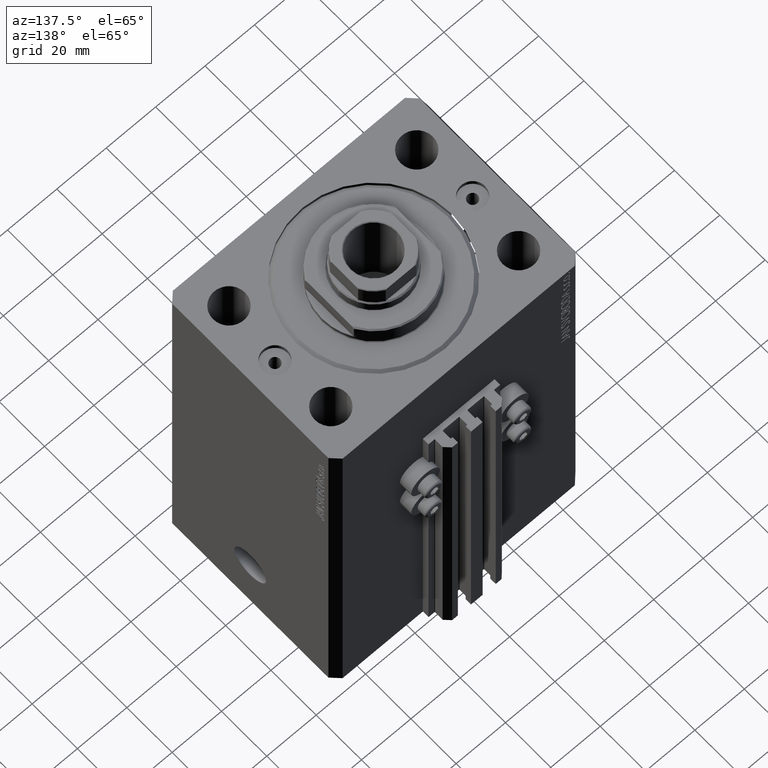
[diagram: clean part render]
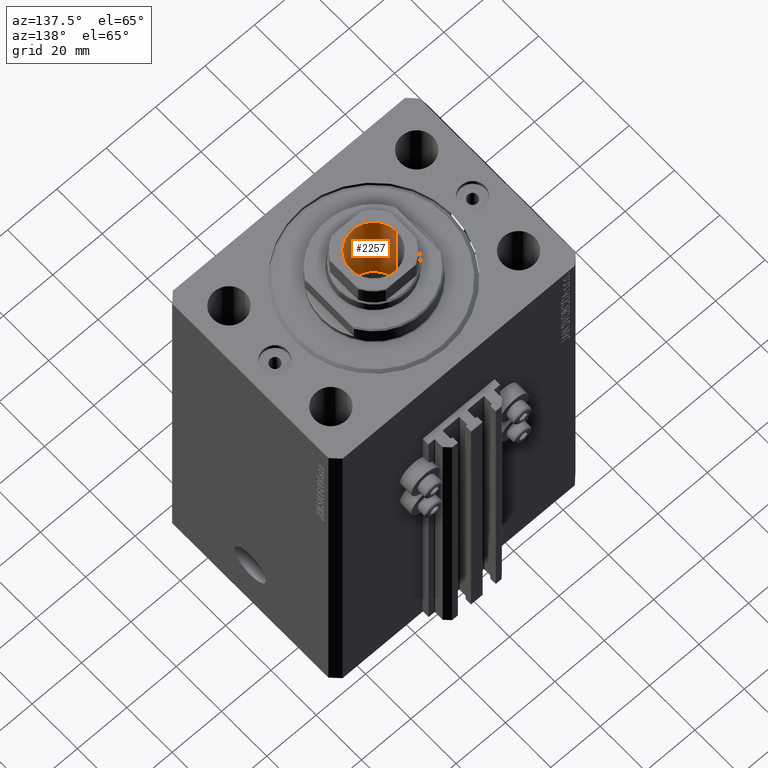
[diagram: same view with one face highlighted and labeled with its STEP entity id]
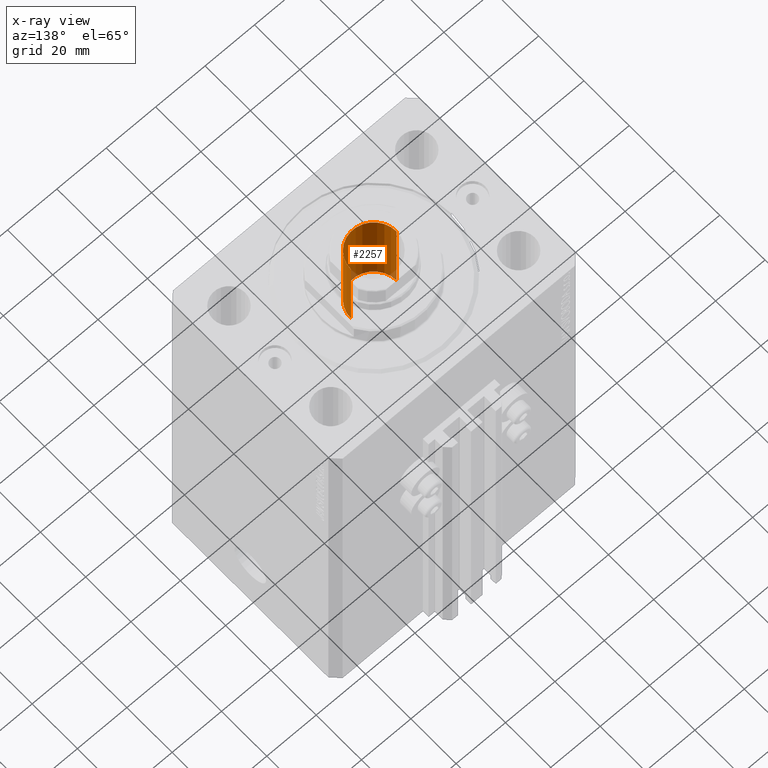
[diagram: x-ray of the same camera — body ghosted, the highlighted face saturated]
A machine part, auxiliary view. The second image highlights one B-rep face of the part: STEP entity #2257.
The next image is the same camera in x-ray: the body ghosted, the highlighted face saturated — about 3% of this face is hidden behind the body in this view.
In plain terms, the highlighted cylindrical surface (edge-blend (fillet) strip) has radius 9.25 mm, axis along (0, 0, 1).
Its self-contained STEP definition (entity closure, byte-faithful):
#1807 = CIRCLE ( 'NONE', #40711, 9.249999999999996447 ) ;
#2257 = ADVANCED_FACE ( 'NONE', ( #10393 ), #10165, .F. ) ;
#5801 = DIRECTION ( 'NONE',  ( 1.000000000000000000, 0.000000000000000000, 0.000000000000000000 ) ) ;
#6414 = CARTESIAN_POINT ( 'NONE',  ( 9.249999999999996447, 0.000000000000000000, 163.0000000000000000 ) ) ;
#10165 = CYLINDRICAL_SURFACE ( 'NONE', #37029, 9.249999999999996447 ) ;
#10393 = FACE_OUTER_BOUND ( 'NONE', #28069, .T. ) ;
#12688 = ORIENTED_EDGE ( 'NONE', *, *, #20683, .T. ) ;
#14044 = DIRECTION ( 'NONE',  ( -0.000000000000000000, -0.000000000000000000, 1.000000000000000000 ) ) ;
#14224 = CARTESIAN_POINT ( 'NONE',  ( -9.249999999999996447, 1.132798289211301304E-15, 162.7000000000000171 ) ) ;
#14698 = DIRECTION ( 'NONE',  ( 1.000000000000000000, 0.000000000000000000, 0.000000000000000000 ) ) ;
#16082 = VERTEX_POINT ( 'NONE', #14224 ) ;
#16848 = EDGE_CURVE ( 'NONE', #38548, #16082, #45352, .T. ) ;
#20167 = VERTEX_POINT ( 'NONE', #47244 ) ;
#20508 = CIRCLE ( 'NONE', #24328, 9.249999999999994671 ) ;
#20683 = EDGE_CURVE ( 'NONE', #16082, #26537, #1807, .T. ) ;
#20833 = DIRECTION ( 'NONE',  ( 0.000000000000000000, 0.000000000000000000, 1.000000000000000000 ) ) ;
#22272 = ORIENTED_EDGE ( 'NONE', *, *, #35832, .F. ) ;
#24328 = AXIS2_PLACEMENT_3D ( 'NONE', #35783, #14044, #28608 ) ;
#26537 = VERTEX_POINT ( 'NONE', #32533 ) ;
#27457 = DIRECTION ( 'NONE',  ( -0.000000000000000000, -0.000000000000000000, 1.000000000000000000 ) ) ;
#28069 = EDGE_LOOP ( 'NONE', ( #40649, #35598, #12688, #22272 ) ) ;
#28608 = DIRECTION ( 'NONE',  ( 1.000000000000000000, 0.000000000000000000, 0.000000000000000000 ) ) ;
#32533 = CARTESIAN_POINT ( 'NONE',  ( 9.249999999999996447, 0.000000000000000000, 162.7000000000000171 ) ) ;
#34908 = EDGE_CURVE ( 'NONE', #38548, #20167, #20508, .T. ) ;
#35598 = ORIENTED_EDGE ( 'NONE', *, *, #16848, .T. ) ;
#35783 = CARTESIAN_POINT ( 'NONE',  ( 0.000000000000000000, 0.000000000000000000, 128.0000000000000000 ) ) ;
#35832 = EDGE_CURVE ( 'NONE', #20167, #26537, #38891, .T. ) ;
#37029 = AXIS2_PLACEMENT_3D ( 'NONE', #39301, #39529, #14698 ) ;
#38527 = CARTESIAN_POINT ( 'NONE',  ( -9.249999999999994671, 1.132798289211300909E-15, 128.0000000000000000 ) ) ;
#38548 = VERTEX_POINT ( 'NONE', #38527 ) ;
#38891 = LINE ( 'NONE', #6414, #45000 ) ;
#39301 = CARTESIAN_POINT ( 'NONE',  ( 0.000000000000000000, 0.000000000000000000, 163.0000000000000000 ) ) ;
#39529 = DIRECTION ( 'NONE',  ( -0.000000000000000000, -0.000000000000000000, 1.000000000000000000 ) ) ;
#40649 = ORIENTED_EDGE ( 'NONE', *, *, #34908, .F. ) ;
#40711 = AXIS2_PLACEMENT_3D ( 'NONE', #46357, #20833, #5801 ) ;
#40743 = VECTOR ( 'NONE', #27457, 1000.000000000000000 ) ;
#45000 = VECTOR ( 'NONE', #46740, 1000.000000000000000 ) ;
#45352 = LINE ( 'NONE', #45589, #40743 ) ;
#45589 = CARTESIAN_POINT ( 'NONE',  ( -9.249999999999996447, 1.132798289211301304E-15, 163.0000000000000000 ) ) ;
#46357 = CARTESIAN_POINT ( 'NONE',  ( 0.000000000000000000, 0.000000000000000000, 162.7000000000000171 ) ) ;
#46740 = DIRECTION ( 'NONE',  ( -0.000000000000000000, -0.000000000000000000, 1.000000000000000000 ) ) ;
#47244 = CARTESIAN_POINT ( 'NONE',  ( 9.249999999999994671, 0.000000000000000000, 128.0000000000000000 ) ) ;